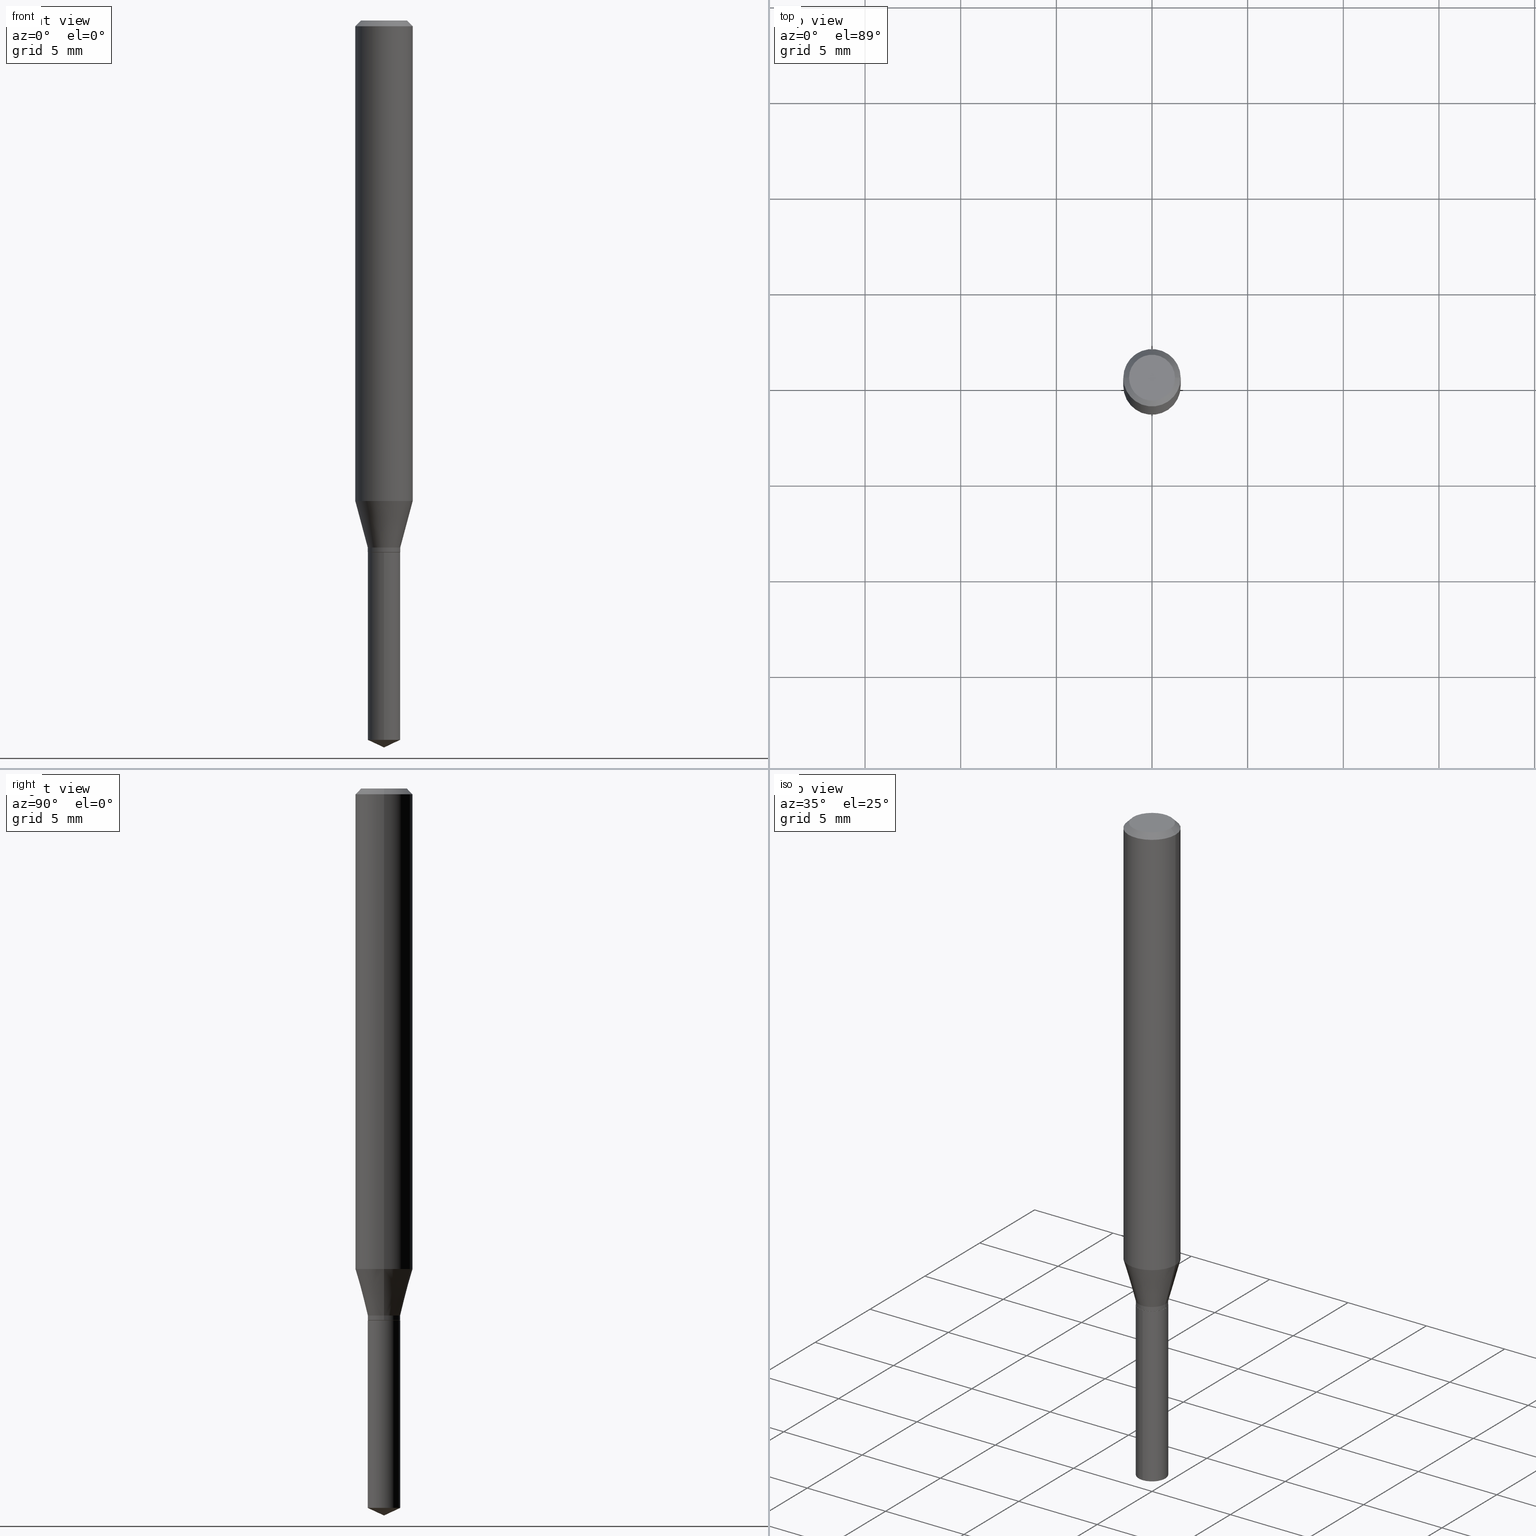
[diagram: canonical four-view strip — front | top / right | iso, engineering-drawing reading convention]
A machine part, canonical four-view strip (front | top / right | iso — engineering-drawing reading convention). The complete STEP part file that produces these views, byte-faithful:
ISO-10303-21;
HEADER;
FILE_DESCRIPTION (( 'STEP AP203' ),
    '1' );
FILE_NAME ('08174.STEP',
    '2024-04-24T13:42:59',
    ( '' ),
    ( '' ),
    'SwSTEP 2.0',
    'SolidWorks 2023',
    '' );
FILE_SCHEMA (( 'CONFIG_CONTROL_DESIGN' ));
ENDSEC;

DATA;
#1 = EDGE_LOOP ( 'NONE', ( #410, #329, #4, #339 ) ) ;
#2 = EDGE_CURVE ( 'NONE', #147, #327, #171, .T. ) ;
#3 = LENGTH_MEASURE_WITH_UNIT ( LENGTH_MEASURE( 0.02539999999999999897 ), #464 );
#4 = ORIENTED_EDGE ( 'NONE', *, *, #167, .F. ) ;
#5 = CIRCLE ( 'NONE', #199, 0.03344999999999999363 ) ;
#6 = APPLICATION_PROTOCOL_DEFINITION ( 'international standard', 'config_control_design', 1994, #235 ) ;
#7 = DIRECTION ( 'NONE',  ( 0.7071067811864205632, -2.468850131080928224E-15, 0.7071067811866742492 ) ) ;
#8 = COORDINATED_UNIVERSAL_TIME_OFFSET ( 5, 0, .BEHIND. ) ;
#9 = CARTESIAN_POINT ( 'NONE',  ( 0.05904999999999999832, -4.535783407291118600E-16, -0.01181000000000007218 ) ) ;
#10 = ADVANCED_FACE ( 'NONE', ( #85 ), #237, .F. ) ;
#11 = PERSON_AND_ORGANIZATION ( #28, #125 ) ;
#12 = DIRECTION ( 'NONE',  ( -2.445468806185136877E-29, 3.491481338843145188E-15, 1.000000000000000000 ) ) ;
#13 = AXIS2_PLACEMENT_3D ( 'NONE', #478, #104, #296 ) ;
#14 = APPROVAL_PERSON_ORGANIZATION ( #380, #318, #353 ) ;
#15 = COORDINATED_UNIVERSAL_TIME_OFFSET ( 5, 0, .BEHIND. ) ;
#16 = DIRECTION ( 'NONE',  ( -0.2588190451025213501, 5.211531920934551042E-15, 0.9659258262890682012 ) ) ;
#17 = APPROVAL_DATE_TIME ( #470, #318 ) ;
#18 = CARTESIAN_POINT ( 'NONE',  ( 2.652110920307780249E-29, -3.786511511975391124E-15, -1.084499999999999797 ) ) ;
#19 = ADVANCED_FACE ( 'NONE', ( #247 ), #487, .T. ) ;
#20 = AXIS2_PLACEMENT_3D ( 'NONE', #396, #177, #133 ) ;
#21 = CARTESIAN_POINT ( 'NONE',  ( 0.000000000000000000, 0.000000000000000000, 0.000000000000000000 ) ) ;
#22 = AXIS2_PLACEMENT_3D ( 'NONE', #374, #413, #404 ) ;
#23 = CONICAL_SURFACE ( 'NONE', #13, 0.03344999999999998669, 0.2617993877991500740 ) ;
#24 = DIRECTION ( 'NONE',  ( -2.445468806185136597E-29, 3.491481338843145583E-15, 1.000000000000000000 ) ) ;
#25 = CONICAL_SURFACE ( 'NONE', #442, 84.42940631927660888, 1.134464013796326221 ) ;
#26 = DIRECTION ( 'NONE',  ( -2.445402730703145379E-29, 3.491575962694140016E-15, 1.000000000000000000 ) ) ;
#27 = VERTEX_POINT ( 'NONE', #50 ) ;
#28 = PERSON ( 'UNSPECIFIED', 'UNSPECIFIED', 'UNSPECIFIED', ('UNSPECIFIED'), ('UNSPECIFIED'), ('UNSPECIFIED') ) ;
#29 = DIRECTION ( 'NONE',  ( -2.445402730703145379E-29, 3.491575962694140016E-15, 1.000000000000000000 ) ) ;
#30 = ORIENTED_EDGE ( 'NONE', *, *, #2, .T. ) ;
#31 = EDGE_CURVE ( 'NONE', #294, #27, #210, .T. ) ;
#32 = DIRECTION ( 'NONE',  ( -2.445468806185136597E-29, 3.491481338843145583E-15, 1.000000000000000000 ) ) ;
#33 = CARTESIAN_POINT ( 'NONE',  ( 3.658567025404975087E-29, -5.223746797786701947E-15, -1.496099999999999985 ) ) ;
#34 = ORIENTED_EDGE ( 'NONE', *, *, #381, .T. ) ;
#35 = CARTESIAN_POINT ( 'NONE',  ( 0.03344999999999998669, -4.020091613543996190E-15, -1.084499999999999797 ) ) ;
#36 = VERTEX_POINT ( 'NONE', #246 ) ;
#37 = LINE ( 'NONE', #301, #209 ) ;
#38 = APPROVAL_PERSON_ORGANIZATION ( #127, #238, #387 ) ;
#39 = ORIENTED_EDGE ( 'NONE', *, *, #452, .T. ) ;
#40 = CC_DESIGN_APPROVAL ( #318, ( #102 ) ) ;
#41 = CARTESIAN_POINT ( 'NONE',  ( 0.03344999999999998669, -2.335801015686055098E-16, 1.631081131503739828E-30 ) ) ;
#42 = VERTEX_POINT ( 'NONE', #202 ) ;
#43 = DATE_AND_TIME ( #377, #230 ) ;
#44 = ORIENTED_EDGE ( 'NONE', *, *, #117, .T. ) ;
#45 = EDGE_CURVE ( 'NONE', #266, #27, #351, .T. ) ;
#46 = DATE_AND_TIME ( #345, #240 ) ;
#47 = DIRECTION ( 'NONE',  ( -1.000000000000000000, 6.982962677686266711E-15, 0.000000000000000000 ) ) ;
#48 =( GEOMETRIC_REPRESENTATION_CONTEXT ( 3 ) GLOBAL_UNCERTAINTY_ASSIGNED_CONTEXT ( ( #323 ) ) GLOBAL_UNIT_ASSIGNED_CONTEXT ( ( #163, #168, #319 ) ) REPRESENTATION_CONTEXT ( 'NONE', 'WORKASPACE' ) );
#49 = CALENDAR_DATE ( 2024, 24, 4 ) ;
#50 = CARTESIAN_POINT ( 'NONE',  ( 0.03344999999999999363, -4.053260686263006336E-15, -1.093999999999999861 ) ) ;
#51 = SECURITY_CLASSIFICATION_LEVEL ( 'unclassified' ) ;
#52 = LINE ( 'NONE', #465, #241 ) ;
#53 = EDGE_CURVE ( 'NONE', #341, #36, #468, .T. ) ;
#54 = DATE_AND_TIME ( #49, #300 ) ;
#55 = DIRECTION ( 'NONE',  ( 2.445468806185136597E-29, -3.491481338843145583E-15, -1.000000000000000000 ) ) ;
#56 = AXIS2_PLACEMENT_3D ( 'NONE', #292, #469, #207 ) ;
#57 = DIRECTION ( 'NONE',  ( 2.445402730703145099E-29, -3.491575962694140016E-15, -1.000000000000000000 ) ) ;
#58 = DIRECTION ( 'NONE',  ( -6.982962677686264344E-15, -1.000000000000000000, 4.083479811157344024E-15 ) ) ;
#59 = CC_DESIGN_PERSON_AND_ORGANIZATION_ASSIGNMENT ( #201, #129, ( #102 ) ) ;
#60 = CARTESIAN_POINT ( 'NONE',  ( 2.676565608369632355E-29, -3.821426325363822773E-15, -1.094500000000000028 ) ) ;
#61 = ORIENTED_EDGE ( 'NONE', *, *, #390, .F. ) ;
#62 = AXIS2_PLACEMENT_3D ( 'NONE', #372, #191, #152 ) ;
#63 = FACE_OUTER_BOUND ( 'NONE', #373, .T. ) ;
#64 = SHAPE_DEFINITION_REPRESENTATION ( #242, #139 ) ;
#65 = CARTESIAN_POINT ( 'NONE',  ( 2.676565608369632355E-29, -3.821426325363822773E-15, -1.094500000000000028 ) ) ;
#66 = ORIENTED_EDGE ( 'NONE', *, *, #452, .F. ) ;
#67 = FACE_OUTER_BOUND ( 'NONE', #1, .T. ) ;
#68 = PRODUCT_DEFINITION ( 'UNKNOWN', '', #256, #278 ) ;
#69 = ORIENTED_EDGE ( 'NONE', *, *, #363, .F. ) ;
#70 = LINE ( 'NONE', #33, #95 ) ;
#71 = VECTOR ( 'NONE', #273, 39.37007874015748143 ) ;
#72 = ADVANCED_FACE ( 'NONE', ( #200 ), #392, .F. ) ;
#73 = AXIS2_PLACEMENT_3D ( 'NONE', #424, #162, #429 ) ;
#74 = ORIENTED_EDGE ( 'NONE', *, *, #431, .T. ) ;
#75 = CYLINDRICAL_SURFACE ( 'NONE', #156, 0.03345000000000000057 ) ;
#76 = ORIENTED_EDGE ( 'NONE', *, *, #167, .T. ) ;
#77 = DIRECTION ( 'NONE',  ( 6.439704144417061119E-15, 0.9063077870366564870, 0.4226182617406853970 ) ) ;
#78 = EDGE_CURVE ( 'NONE', #271, #341, #357, .T. ) ;
#79 = EDGE_LOOP ( 'NONE', ( #223, #39, #302 ) ) ;
#80 = DIRECTION ( 'NONE',  ( -2.445468806185136597E-29, 3.491481338843145583E-15, 1.000000000000000000 ) ) ;
#81 = ORIENTED_EDGE ( 'NONE', *, *, #325, .T. ) ;
#82 = CARTESIAN_POINT ( 'NONE',  ( 2.676565608369631794E-29, -3.821426325363822773E-15, -1.094499999999999806 ) ) ;
#83 = VERTEX_POINT ( 'NONE', #9 ) ;
#84 = APPROVAL_STATUS ( 'not_yet_approved' ) ;
#85 = FACE_OUTER_BOUND ( 'NONE', #474, .T. ) ;
#86 = APPROVAL_ROLE ( '' ) ;
#87 = CARTESIAN_POINT ( 'NONE',  ( 2.888098660104664204E-31, -4.123439461173780263E-17, -0.01181000000000007218 ) ) ;
#88 = CIRCLE ( 'NONE', #62, 0.03345000000000000057 ) ;
#89 = AXIS2_PLACEMENT_3D ( 'NONE', #420, #94, #204 ) ;
#90 = CARTESIAN_POINT ( 'NONE',  ( 0.04724000000000000421, -3.852183633974369345E-16, -3.380025165621689721E-19 ) ) ;
#91 = DIRECTION ( 'NONE',  ( 0.000000000000000000, 0.000000000000000000, 1.000000000000000000 ) ) ;
#92 = CARTESIAN_POINT ( 'NONE',  ( 2.888098660104664204E-31, -4.123439461173780263E-17, -0.01181000000000007218 ) ) ;
#93 = COORDINATED_UNIVERSAL_TIME_OFFSET ( 5, 0, .BEHIND. ) ;
#94 = DIRECTION ( 'NONE',  ( -2.445468806185136597E-29, 3.491481338843145583E-15, 1.000000000000000000 ) ) ;
#95 = VECTOR ( 'NONE', #484, 39.37007874015748143 ) ;
#96 = CARTESIAN_POINT ( 'NONE',  ( 2.418469606182781541E-29, -3.452933636769214658E-15, -0.9889594993262362799 ) ) ;
#97 = LINE ( 'NONE', #433, #264 ) ;
#98 = ORIENTED_EDGE ( 'NONE', *, *, #414, .T. ) ;
#99 = EDGE_CURVE ( 'NONE', #271, #438, #126, .T. ) ;
#100 = CARTESIAN_POINT ( 'NONE',  ( -9.261705871415894043E-28, 1.322399773465276608E-13, 37.87397874015748300 ) ) ;
#101 = CONICAL_SURFACE ( 'NONE', #263, 0.03344999999999998669, 0.2617993877991500740 ) ;
#102 = SECURITY_CLASSIFICATION ( '', '', #51 ) ;
#103 = FACE_OUTER_BOUND ( 'NONE', #449, .T. ) ;
#104 = DIRECTION ( 'NONE',  ( -2.445468806185136597E-29, 3.491481338843145583E-15, 1.000000000000000000 ) ) ;
#105 = DIRECTION ( 'NONE',  ( 1.000000000000000000, -6.982962677686267499E-15, 0.000000000000000000 ) ) ;
#106 = ORIENTED_EDGE ( 'NONE', *, *, #134, .F. ) ;
#107 = EDGE_CURVE ( 'NONE', #483, #268, #231, .T. ) ;
#108 = CARTESIAN_POINT ( 'NONE',  ( 2.676565608369632355E-29, -3.821426325363822773E-15, -1.094500000000000028 ) ) ;
#109 = APPROVAL_PERSON_ORGANIZATION ( #277, #141, #86 ) ;
#110 = ORIENTED_EDGE ( 'NONE', *, *, #447, .T. ) ;
#111 = LINE ( 'NONE', #225, #142 ) ;
#112 = ORIENTED_EDGE ( 'NONE', *, *, #31, .F. ) ;
#113 = APPLICATION_CONTEXT ( 'configuration controlled 3d designs of mechanical parts and assemblies' ) ;
#114 = ADVANCED_FACE ( 'NONE', ( #458 ), #308, .T. ) ;
#115 = CARTESIAN_POINT ( 'NONE',  ( -0.03344999999999998669, 2.376765451117534176E-16, -1.645383787690265228E-30 ) ) ;
#116 = ORIENTED_EDGE ( 'NONE', *, *, #176, .T. ) ;
#117 = EDGE_CURVE ( 'NONE', #268, #483, #289, .T. ) ;
#118 = CARTESIAN_POINT ( 'NONE',  ( 2.676565608369632355E-29, -3.821426325363822773E-15, -1.094500000000000028 ) ) ;
#119 = CIRCLE ( 'NONE', #181, 0.03345000000000000057 ) ;
#120 = ORIENTED_EDGE ( 'NONE', *, *, #78, .F. ) ;
#121 = LINE ( 'NONE', #122, #174 ) ;
#122 = CARTESIAN_POINT ( 'NONE',  ( 0.03344999999999998669, -4.020091613543996190E-15, -1.084499999999999797 ) ) ;
#123 = PERSON_AND_ORGANIZATION_ROLE ( 'design_owner' ) ;
#124 = CARTESIAN_POINT ( 'NONE',  ( 2.676565608369631794E-29, -3.821426325363822773E-15, -1.094499999999999806 ) ) ;
#125 = ORGANIZATION ( 'UNSPECIFIED', 'UNSPECIFIED', '' ) ;
#126 = CIRCLE ( 'NONE', #249, 0.03344999999999998669 ) ;
#127 = PERSON_AND_ORGANIZATION ( #28, #125 ) ;
#128 = DIRECTION ( 'NONE',  ( -2.445468806185136877E-29, 3.491481338843145188E-15, 1.000000000000000000 ) ) ;
#129 = PERSON_AND_ORGANIZATION_ROLE ( 'classification_officer' ) ;
#130 = MANIFOLD_SOLID_BREP ( 'Body-Move/Copy2[1]', #436 ) ;
#131 = DIRECTION ( 'NONE',  ( 6.982962677686265922E-15, 1.000000000000000000, -3.491575962694140016E-15 ) ) ;
#132 = AXIS2_PLACEMENT_3D ( 'NONE', #386, #169, #275 ) ;
#133 = DIRECTION ( 'NONE',  ( -6.982962677686266711E-15, -1.000000000000000000, 3.520397390770359207E-15 ) ) ;
#134 = EDGE_CURVE ( 'NONE', #438, #42, #121, .T. ) ;
#135 = AXIS2_PLACEMENT_3D ( 'NONE', #481, #338, #105 ) ;
#136 = VECTOR ( 'NONE', #12, 39.37007874015748143 ) ;
#137 = FACE_OUTER_BOUND ( 'NONE', #398, .T. ) ;
#138 = CYLINDRICAL_SURFACE ( 'NONE', #56, 0.03344999999999998669 ) ;
#139 = ADVANCED_BREP_SHAPE_REPRESENTATION ( '08174', ( #130, #144, #190 ), #48 ) ;
#140 = CARTESIAN_POINT ( 'NONE',  ( 2.652110920307780249E-29, -3.786511511975391124E-15, -1.084499999999999797 ) ) ;
#141 = APPROVAL ( #84, 'UNSPECIFIED' ) ;
#142 = VECTOR ( 'NONE', #335, 39.37007874015748143 ) ;
#143 = DIRECTION ( 'NONE',  ( -6.982962677686266711E-15, -1.000000000000000000, 3.520397390770359207E-15 ) ) ;
#144 = MANIFOLD_SOLID_BREP ( 'Body-Move/Copy2[2]', #224 ) ;
#145 = CARTESIAN_POINT ( 'NONE',  ( 0.000000000000000000, 0.000000000000000000, 0.000000000000000000 ) ) ;
#146 = CARTESIAN_POINT ( 'NONE',  ( -0.03295000000000000012, -3.584653266756758314E-15, -1.094500000000000028 ) ) ;
#147 = VERTEX_POINT ( 'NONE', #90 ) ;
#148 = AXIS2_PLACEMENT_3D ( 'NONE', #96, #293, #170 ) ;
#149 = CARTESIAN_POINT ( 'NONE',  ( 3.658567025404975087E-29, -5.223746797786701947E-15, -1.496099999999999985 ) ) ;
#150 = CC_DESIGN_SECURITY_CLASSIFICATION ( #102, ( #256 ) ) ;
#151 = ORIENTED_EDGE ( 'NONE', *, *, #78, .T. ) ;
#152 = DIRECTION ( 'NONE',  ( -6.982962677686264344E-15, -1.000000000000000000, 0.000000000000000000 ) ) ;
#153 = EDGE_LOOP ( 'NONE', ( #334, #192, #405, #378 ) ) ;
#154 = FACE_OUTER_BOUND ( 'NONE', #486, .T. ) ;
#155 = EDGE_LOOP ( 'NONE', ( #76, #34, #349, #253 ) ) ;
#156 = AXIS2_PLACEMENT_3D ( 'NONE', #82, #222, #298 ) ;
#157 = ORIENTED_EDGE ( 'NONE', *, *, #381, .F. ) ;
#158 = EDGE_CURVE ( 'NONE', #42, #341, #166, .T. ) ;
#159 = VECTOR ( 'NONE', #7, 39.37007874015748854 ) ;
#160 = ORIENTED_EDGE ( 'NONE', *, *, #31, .T. ) ;
#161 = EDGE_CURVE ( 'NONE', #42, #83, #52, .T. ) ;
#162 = DIRECTION ( 'NONE',  ( -2.445402730703145379E-29, 3.491575962694140016E-15, 1.000000000000000000 ) ) ;
#163 =( CONVERSION_BASED_UNIT ( 'INCH', #3 ) LENGTH_UNIT ( ) NAMED_UNIT ( #244 ) );
#164 = DIRECTION ( 'NONE',  ( -1.000000000000000000, 6.982962677686266711E-15, 0.000000000000000000 ) ) ;
#165 = CC_DESIGN_APPROVAL ( #238, ( #256 ) ) ;
#166 = CIRCLE ( 'NONE', #407, 0.05905000000000011628 ) ;
#167 = EDGE_CURVE ( 'NONE', #27, #294, #5, .T. ) ;
#168 =( NAMED_UNIT ( * ) PLANE_ANGLE_UNIT ( ) SI_UNIT ( $, .RADIAN. ) );
#169 = DIRECTION ( 'NONE',  ( -2.445468806185136597E-29, 3.491481338843145583E-15, 1.000000000000000000 ) ) ;
#170 = DIRECTION ( 'NONE',  ( 1.000000000000000000, -6.982962677686266711E-15, 0.000000000000000000 ) ) ;
#171 = CIRCLE ( 'NONE', #132, 0.04724000000000000421 ) ;
#172 = DIRECTION ( 'NONE',  ( 1.000000000000000000, -6.982962677686266711E-15, 4.876176775795935793E-29 ) ) ;
#173 = AXIS2_PLACEMENT_3D ( 'NONE', #108, #229, #305 ) ;
#174 = VECTOR ( 'NONE', #462, 39.37007874015747433 ) ;
#175 = DIRECTION ( 'NONE',  ( -2.445402730703145379E-29, 3.491575962694140016E-15, 1.000000000000000000 ) ) ;
#176 = EDGE_CURVE ( 'NONE', #234, #483, #97, .T. ) ;
#177 = DIRECTION ( 'NONE',  ( -2.445402730703145379E-29, 3.491575962694140016E-15, 1.000000000000000000 ) ) ;
#178 = CC_DESIGN_DATE_AND_TIME_ASSIGNMENT ( #43, #196, ( #102 ) ) ;
#179 = ORIENTED_EDGE ( 'NONE', *, *, #480, .T. ) ;
#180 = CARTESIAN_POINT ( 'NONE',  ( 0.000000000000000000, 0.000000000000000000, 0.000000000000000000 ) ) ;
#181 = AXIS2_PLACEMENT_3D ( 'NONE', #333, #340, #187 ) ;
#182 = ADVANCED_FACE ( 'NONE', ( #364 ), #25, .T. ) ;
#183 = FACE_OUTER_BOUND ( 'NONE', #155, .T. ) ;
#184 = ORIENTED_EDGE ( 'NONE', *, *, #161, .T. ) ;
#185 = DIRECTION ( 'NONE',  ( -2.445468806185136877E-29, 3.491481338843145188E-15, 1.000000000000000000 ) ) ;
#186 = ORIENTED_EDGE ( 'NONE', *, *, #107, .T. ) ;
#187 = DIRECTION ( 'NONE',  ( -6.982962677686264344E-15, -1.000000000000000000, 0.000000000000000000 ) ) ;
#188 = ORIENTED_EDGE ( 'NONE', *, *, #134, .T. ) ;
#189 = ADVANCED_FACE ( 'NONE', ( #252 ), #328, .T. ) ;
#190 = AXIS2_PLACEMENT_3D ( 'NONE', #307, #91, #316 ) ;
#191 = DIRECTION ( 'NONE',  ( -2.445402730703145379E-29, 3.491575962694140016E-15, 1.000000000000000000 ) ) ;
#192 = ORIENTED_EDGE ( 'NONE', *, *, #423, .F. ) ;
#193 = ADVANCED_FACE ( 'NONE', ( #359 ), #422, .T. ) ;
#194 = DIRECTION ( 'NONE',  ( -2.445468806185136877E-29, 3.491481338843145188E-15, 1.000000000000000000 ) ) ;
#195 = EDGE_LOOP ( 'NONE', ( #299, #197, #445, #112 ) ) ;
#196 = DATE_TIME_ROLE ( 'classification_date' ) ;
#197 = ORIENTED_EDGE ( 'NONE', *, *, #397, .T. ) ;
#198 = APPROVAL_STATUS ( 'not_yet_approved' ) ;
#199 = AXIS2_PLACEMENT_3D ( 'NONE', #214, #24, #254 ) ;
#200 = FACE_OUTER_BOUND ( 'NONE', #412, .T. ) ;
#201 = PERSON_AND_ORGANIZATION ( #28, #125 ) ;
#202 = CARTESIAN_POINT ( 'NONE',  ( 0.05905000000000011628, -3.865277582886589578E-15, -0.9889594993262362799 ) ) ;
#203 = CIRCLE ( 'NONE', #391, 0.05904999999999999832 ) ;
#204 = DIRECTION ( 'NONE',  ( 1.000000000000000000, -6.982962677686265922E-15, 0.000000000000000000 ) ) ;
#205 = CALENDAR_DATE ( 2024, 24, 4 ) ;
#206 = CARTESIAN_POINT ( 'NONE',  ( 0.03295000000000000012, -4.051514945593585621E-15, -1.094500000000000028 ) ) ;
#207 = DIRECTION ( 'NONE',  ( 1.000000000000000000, -6.982962677686265922E-15, 4.876176775795935793E-29 ) ) ;
#208 = ORIENTED_EDGE ( 'NONE', *, *, #397, .F. ) ;
#209 = VECTOR ( 'NONE', #488, 39.37007874015748854 ) ;
#210 = CIRCLE ( 'NONE', #89, 0.03344999999999999363 ) ;
#211 = DIRECTION ( 'NONE',  ( 1.000000000000000000, -6.982962677686267499E-15, 0.000000000000000000 ) ) ;
#212 = EDGE_LOOP ( 'NONE', ( #215, #74, #489, #251 ) ) ;
#213 = ADVANCED_FACE ( 'NONE', ( #471 ), #440, .T. ) ;
#214 = CARTESIAN_POINT ( 'NONE',  ( 2.675342873966538993E-29, -3.819680584694400481E-15, -1.093999999999999861 ) ) ;
#215 = ORIENTED_EDGE ( 'NONE', *, *, #2, .F. ) ;
#216 = DIRECTION ( 'NONE',  ( 1.000000000000000000, -6.982962677686264344E-15, 0.000000000000000000 ) ) ;
#217 = ORIENTED_EDGE ( 'NONE', *, *, #117, .F. ) ;
#218 = CONICAL_SURFACE ( 'NONE', #432, 0.03295000000000000012, 0.7853981633972689780 ) ;
#219 = AXIS2_PLACEMENT_3D ( 'NONE', #92, #428, #164 ) ;
#220 = CARTESIAN_POINT ( 'NONE',  ( 2.888098660104664204E-31, -4.123439461173780263E-17, -0.01181000000000007218 ) ) ;
#221 = ORIENTED_EDGE ( 'NONE', *, *, #53, .T. ) ;
#222 = DIRECTION ( 'NONE',  ( -2.445402730703145379E-29, 3.491575962694140016E-15, 1.000000000000000000 ) ) ;
#223 = ORIENTED_EDGE ( 'NONE', *, *, #477, .F. ) ;
#224 = CLOSED_SHELL ( 'NONE', ( #309, #19, #226, #315, #352, #290, #276, #189, #114, #342, #10, #213 ) ) ;
#225 = CARTESIAN_POINT ( 'NONE',  ( 0.05904999999999999832, -4.463468013801466955E-16, -0.01181000000000007218 ) ) ;
#226 = ADVANCED_FACE ( 'NONE', ( #137 ), #291, .T. ) ;
#227 = EDGE_LOOP ( 'NONE', ( #419, #179, #98, #304 ) ) ;
#228 = CIRCLE ( 'NONE', #173, 0.03295000000000000012 ) ;
#229 = DIRECTION ( 'NONE',  ( -2.445468806185136597E-29, 3.491481338843145583E-15, 1.000000000000000000 ) ) ;
#230 = LOCAL_TIME ( 9, 42, 59.00000000000000000, #93 ) ;
#231 = CIRCLE ( 'NONE', #73, 0.03345000000000000057 ) ;
#232 = ORIENTED_EDGE ( 'NONE', *, *, #325, .F. ) ;
#233 = CARTESIAN_POINT ( 'NONE',  ( 8.265746106709734507E-48, -1.180129479067563789E-33, -3.380025165646692144E-19 ) ) ;
#234 = VERTEX_POINT ( 'NONE', #331 ) ;
#235 = APPLICATION_CONTEXT ( 'configuration controlled 3d designs of mechanical parts and assemblies' ) ;
#236 = PERSON_AND_ORGANIZATION ( #28, #125 ) ;
#237 = PLANE ( 'NONE',  #321 ) ;
#238 = APPROVAL ( #280, 'UNSPECIFIED' ) ;
#239 = PERSON_AND_ORGANIZATION_ROLE ( 'creator' ) ;
#240 = LOCAL_TIME ( 9, 42, 59.00000000000000000, #245 ) ;
#241 = VECTOR ( 'NONE', #128, 39.37007874015748143 ) ;
#242 = PRODUCT_DEFINITION_SHAPE ( 'NONE', 'NONE',  #68 ) ;
#243 = CARTESIAN_POINT ( 'NONE',  ( 2.418469606182781541E-29, -3.452933636769214658E-15, -0.9889594993262362799 ) ) ;
#244 = DIMENSIONAL_EXPONENTS ( 1.000000000000000000, 0.000000000000000000, 0.000000000000000000, 0.000000000000000000, 0.000000000000000000, 0.000000000000000000, 0.000000000000000000 ) ;
#245 = COORDINATED_UNIVERSAL_TIME_OFFSET ( 5, 0, .BEHIND. ) ;
#246 = CARTESIAN_POINT ( 'NONE',  ( -0.05904999999999999832, -1.327508530224135714E-15, -0.01181000000000007218 ) ) ;
#247 = FACE_OUTER_BOUND ( 'NONE', #212, .T. ) ;
#248 = AXIS2_PLACEMENT_3D ( 'NONE', #180, #361, #172 ) ;
#249 = AXIS2_PLACEMENT_3D ( 'NONE', #18, #310, #282 ) ;
#250 = FACE_OUTER_BOUND ( 'NONE', #227, .T. ) ;
#251 = ORIENTED_EDGE ( 'NONE', *, *, #421, .F. ) ;
#252 = FACE_OUTER_BOUND ( 'NONE', #274, .T. ) ;
#253 = ORIENTED_EDGE ( 'NONE', *, *, #376, .F. ) ;
#254 = DIRECTION ( 'NONE',  ( 1.000000000000000000, -6.982962677686265922E-15, 0.000000000000000000 ) ) ;
#255 = ORIENTED_EDGE ( 'NONE', *, *, #53, .F. ) ;
#256 = PRODUCT_DEFINITION_FORMATION_WITH_SPECIFIED_SOURCE ( 'ANY', '', #466, .NOT_KNOWN. ) ;
#257 = LOCAL_TIME ( 9, 42, 59.00000000000000000, #475 ) ;
#258 = AXIS2_PLACEMENT_3D ( 'NONE', #124, #57, #131 ) ;
#259 = DIRECTION ( 'NONE',  ( -2.445468806185136597E-29, 3.491481338843145583E-15, 1.000000000000000000 ) ) ;
#260 = DIRECTION ( 'NONE',  ( 1.000000000000000000, -6.982962677686266711E-15, 0.000000000000000000 ) ) ;
#261 = LINE ( 'NONE', #450, #356 ) ;
#262 = ORIENTED_EDGE ( 'NONE', *, *, #376, .T. ) ;
#263 = AXIS2_PLACEMENT_3D ( 'NONE', #140, #399, #211 ) ;
#264 = VECTOR ( 'NONE', #29, 39.37007874015748143 ) ;
#265 = CYLINDRICAL_SURFACE ( 'NONE', #400, 0.03344999999999998669 ) ;
#266 = VERTEX_POINT ( 'NONE', #206 ) ;
#267 = LINE ( 'NONE', #411, #367 ) ;
#268 = VERTEX_POINT ( 'NONE', #403 ) ;
#269 = CC_DESIGN_PERSON_AND_ORGANIZATION_ASSIGNMENT ( #457, #426, ( #256 ) ) ;
#270 = PLANE ( 'NONE',  #22 ) ;
#271 = VERTEX_POINT ( 'NONE', #326 ) ;
#272 = AXIS2_PLACEMENT_3D ( 'NONE', #233, #32, #297 ) ;
#273 = DIRECTION ( 'NONE',  ( -2.445402730703145379E-29, 3.491575962694140016E-15, 1.000000000000000000 ) ) ;
#274 = EDGE_LOOP ( 'NONE', ( #255, #81, #184, #61 ) ) ;
#275 = DIRECTION ( 'NONE',  ( 1.000000000000000000, -6.982962677686266711E-15, 4.876185090822587894E-29 ) ) ;
#276 = ADVANCED_FACE ( 'NONE', ( #435 ), #23, .T. ) ;
#277 = PERSON_AND_ORGANIZATION ( #28, #125 ) ;
#278 = DESIGN_CONTEXT ( 'detailed design', #113, 'design' ) ;
#279 = DIRECTION ( 'NONE',  ( 1.000000000000000000, -6.982962677686265922E-15, 4.876176775795935793E-29 ) ) ;
#280 = APPROVAL_STATUS ( 'not_yet_approved' ) ;
#281 = AXIS2_PLACEMENT_3D ( 'NONE', #118, #343, #490 ) ;
#282 = DIRECTION ( 'NONE',  ( 1.000000000000000000, -6.982962677686267499E-15, 0.000000000000000000 ) ) ;
#283 = EDGE_CURVE ( 'NONE', #83, #36, #203, .T. ) ;
#284 = APPLICATION_PROTOCOL_DEFINITION ( 'international standard', 'config_control_design', 1994, #113 ) ;
#285 = CARTESIAN_POINT ( 'NONE',  ( -0.03344999999999998669, -3.548834966863637756E-15, -1.084499999999999797 ) ) ;
#286 = APPROVAL_DATE_TIME ( #46, #141 ) ;
#287 = FACE_OUTER_BOUND ( 'NONE', #369, .T. ) ;
#288 = VECTOR ( 'NONE', #194, 39.37007874015748143 ) ;
#289 = CIRCLE ( 'NONE', #385, 0.03345000000000000057 ) ;
#290 = ADVANCED_FACE ( 'NONE', ( #287 ), #138, .T. ) ;
#291 = CYLINDRICAL_SURFACE ( 'NONE', #248, 0.05905000000000006077 ) ;
#292 = CARTESIAN_POINT ( 'NONE',  ( 0.000000000000000000, 0.000000000000000000, 0.000000000000000000 ) ) ;
#293 = DIRECTION ( 'NONE',  ( -2.445468806185136597E-29, 3.491481338843145583E-15, 1.000000000000000000 ) ) ;
#294 = VERTEX_POINT ( 'NONE', #324 ) ;
#295 = CIRCLE ( 'NONE', #479, 0.05904999999999999832 ) ;
#296 = DIRECTION ( 'NONE',  ( 1.000000000000000000, -6.982962677686267499E-15, 0.000000000000000000 ) ) ;
#297 = DIRECTION ( 'NONE',  ( 1.000000000000000000, -6.982962677686266711E-15, 4.876185090822587894E-29 ) ) ;
#298 = DIRECTION ( 'NONE',  ( -6.982962677686264344E-15, -1.000000000000000000, 4.083479811157344024E-15 ) ) ;
#299 = ORIENTED_EDGE ( 'NONE', *, *, #393, .F. ) ;
#300 = LOCAL_TIME ( 9, 42, 59.00000000000000000, #8 ) ;
#301 = CARTESIAN_POINT ( 'NONE',  ( -0.03295000000000000012, -3.587302493930870304E-15, -1.094500000000000028 ) ) ;
#302 = ORIENTED_EDGE ( 'NONE', *, *, #480, .F. ) ;
#303 = CARTESIAN_POINT ( 'NONE',  ( 2.376765451117897545E-16, 0.03344999999999617724, -1.094500000000000028 ) ) ;
#304 = ORIENTED_EDGE ( 'NONE', *, *, #107, .F. ) ;
#305 = DIRECTION ( 'NONE',  ( 1.000000000000000000, -6.982962677686264344E-15, 0.000000000000000000 ) ) ;
#306 = ORIENTED_EDGE ( 'NONE', *, *, #158, .T. ) ;
#307 = CARTESIAN_POINT ( 'NONE',  ( 0.000000000000000000, 0.000000000000000000, 0.000000000000000000 ) ) ;
#308 = CONICAL_SURFACE ( 'NONE', #219, 0.05904999999999999832, 0.7853981633974452814 ) ;
#309 = ADVANCED_FACE ( 'NONE', ( #67 ), #218, .T. ) ;
#310 = DIRECTION ( 'NONE',  ( -2.445468806185136597E-29, 3.491481338843145583E-15, 1.000000000000000000 ) ) ;
#311 = MECHANICAL_CONTEXT ( 'NONE', #235, 'mechanical' ) ;
#312 = CARTESIAN_POINT ( 'NONE',  ( 2.676565608369631794E-29, -3.821426325363822773E-15, -1.094499999999999806 ) ) ;
#313 = APPROVAL_DATE_TIME ( #350, #238 ) ;
#314 = DIRECTION ( 'NONE',  ( -6.982962677686264344E-15, -1.000000000000000000, 4.083479811157344024E-15 ) ) ;
#315 = ADVANCED_FACE ( 'NONE', ( #63 ), #101, .T. ) ;
#316 = DIRECTION ( 'NONE',  ( 1.000000000000000000, 0.000000000000000000, 0.000000000000000000 ) ) ;
#317 = LOCAL_TIME ( 9, 42, 59.00000000000000000, #15 ) ;
#318 = APPROVAL ( #198, 'UNSPECIFIED' ) ;
#319 =( NAMED_UNIT ( * ) SI_UNIT ( $, .STERADIAN. ) SOLID_ANGLE_UNIT ( ) );
#320 = ORIENTED_EDGE ( 'NONE', *, *, #99, .T. ) ;
#321 = AXIS2_PLACEMENT_3D ( 'NONE', #358, #430, #279 ) ;
#322 = CARTESIAN_POINT ( 'NONE',  ( -0.04724000000000000421, 3.504923541997677355E-16, -3.380025165670481712E-19 ) ) ;
#323 = UNCERTAINTY_MEASURE_WITH_UNIT (LENGTH_MEASURE( 1.000000000000000082E-05 ), #163, 'distance_accuracy_value', 'NONE');
#324 = CARTESIAN_POINT ( 'NONE',  ( -0.03344999999999999363, -3.565419503223142434E-15, -1.093999999999999861 ) ) ;
#325 = EDGE_CURVE ( 'NONE', #341, #42, #332, .T. ) ;
#326 = CARTESIAN_POINT ( 'NONE',  ( -0.03344999999999998669, -3.565419503223142434E-15, -1.084499999999999797 ) ) ;
#327 = VERTEX_POINT ( 'NONE', #322 ) ;
#328 = CYLINDRICAL_SURFACE ( 'NONE', #330, 0.05905000000000006077 ) ;
#329 = ORIENTED_EDGE ( 'NONE', *, *, #393, .T. ) ;
#330 = AXIS2_PLACEMENT_3D ( 'NONE', #21, #259, #365 ) ;
#331 = CARTESIAN_POINT ( 'NONE',  ( 2.376765451117897052E-16, 0.03344999999999482415, -1.480502008834715610 ) ) ;
#332 = CIRCLE ( 'NONE', #148, 0.05905000000000011628 ) ;
#333 = CARTESIAN_POINT ( 'NONE',  ( 3.620495974830945806E-29, -5.169181660962767472E-15, -1.480502008834715610 ) ) ;
#334 = ORIENTED_EDGE ( 'NONE', *, *, #431, .F. ) ;
#335 = DIRECTION ( 'NONE',  ( 0.7071067811865453523, -7.319954787623248157E-15, -0.7071067811865496822 ) ) ;
#336 = ADVANCED_FACE ( 'NONE', ( #250 ), #394, .T. ) ;
#337 = ORIENTED_EDGE ( 'NONE', *, *, #283, .F. ) ;
#338 = DIRECTION ( 'NONE',  ( -2.445468806185136597E-29, 3.491481338843145583E-15, 1.000000000000000000 ) ) ;
#339 = ORIENTED_EDGE ( 'NONE', *, *, #45, .F. ) ;
#340 = DIRECTION ( 'NONE',  ( -2.445402730703145379E-29, 3.491575962694140016E-15, 1.000000000000000000 ) ) ;
#341 = VERTEX_POINT ( 'NONE', #439 ) ;
#342 = ADVANCED_FACE ( 'NONE', ( #103 ), #270, .F. ) ;
#343 = DIRECTION ( 'NONE',  ( -2.445468806185136597E-29, 3.491481338843145583E-15, 1.000000000000000000 ) ) ;
#344 = ORIENTED_EDGE ( 'NONE', *, *, #477, .T. ) ;
#345 = CALENDAR_DATE ( 2024, 24, 4 ) ;
#346 = ORIENTED_EDGE ( 'NONE', *, *, #414, .F. ) ;
#347 = CC_DESIGN_PERSON_AND_ORGANIZATION_ASSIGNMENT ( #11, #461, ( #256 ) ) ;
#348 = CIRCLE ( 'NONE', #135, 0.03344999999999998669 ) ;
#349 = ORIENTED_EDGE ( 'NONE', *, *, #447, .F. ) ;
#350 = DATE_AND_TIME ( #467, #317 ) ;
#351 = LINE ( 'NONE', #382, #159 ) ;
#352 = ADVANCED_FACE ( 'NONE', ( #183 ), #265, .T. ) ;
#353 = APPROVAL_ROLE ( '' ) ;
#354 = DIRECTION ( 'NONE',  ( -2.445468806185136597E-29, 3.491481338843145583E-15, 1.000000000000000000 ) ) ;
#355 = DATE_TIME_ROLE ( 'creation_date' ) ;
#356 = VECTOR ( 'NONE', #417, 39.37007874015748143 ) ;
#357 = LINE ( 'NONE', #285, #434 ) ;
#358 = CARTESIAN_POINT ( 'NONE',  ( -4.917366192118304542E-30, -8.358615443824423070E-15, -1.094500000000000028 ) ) ;
#359 = FACE_OUTER_BOUND ( 'NONE', #79, .T. ) ;
#360 = ORIENTED_EDGE ( 'NONE', *, *, #161, .F. ) ;
#361 = DIRECTION ( 'NONE',  ( -2.445468806185136597E-29, 3.491481338843145583E-15, 1.000000000000000000 ) ) ;
#362 = CARTESIAN_POINT ( 'NONE',  ( 2.676565608369631794E-29, -3.821426325363822773E-15, -1.094499999999999806 ) ) ;
#363 = EDGE_CURVE ( 'NONE', #266, #402, #228, .T. ) ;
#364 = FACE_OUTER_BOUND ( 'NONE', #371, .T. ) ;
#365 = DIRECTION ( 'NONE',  ( 1.000000000000000000, -6.982962677686266711E-15, 4.876176775795935793E-29 ) ) ;
#366 = ORIENTED_EDGE ( 'NONE', *, *, #423, .T. ) ;
#367 = VECTOR ( 'NONE', #77, 39.37007874015748143 ) ;
#368 = CARTESIAN_POINT ( 'NONE',  ( -2.335801015685693209E-16, -0.03345000000000517004, -1.480502008834715610 ) ) ;
#369 = EDGE_LOOP ( 'NONE', ( #157, #160, #262, #395 ) ) ;
#370 = CARTESIAN_POINT ( 'NONE',  ( -2.335801015685788365E-16, -0.03345000000000382390, -1.094499999999999806 ) ) ;
#371 = EDGE_LOOP ( 'NONE', ( #66, #344, #441 ) ) ;
#372 = CARTESIAN_POINT ( 'NONE',  ( 3.620495974830945806E-29, -5.169181660962767472E-15, -1.480502008834715610 ) ) ;
#373 = EDGE_LOOP ( 'NONE', ( #110, #151, #415, #106 ) ) ;
#374 = CARTESIAN_POINT ( 'NONE',  ( 4.132873053354867254E-48, -5.900647395337818946E-34, -1.690012582823346072E-19 ) ) ;
#375 = EDGE_LOOP ( 'NONE', ( #120, #320, #188, #232 ) ) ;
#376 = EDGE_CURVE ( 'NONE', #27, #438, #409, .T. ) ;
#377 = CALENDAR_DATE ( 2024, 24, 4 ) ;
#378 = ORIENTED_EDGE ( 'NONE', *, *, #390, .T. ) ;
#379 = PRODUCT_RELATED_PRODUCT_CATEGORY ( 'detail', '', ( #466 ) ) ;
#380 = PERSON_AND_ORGANIZATION ( #28, #125 ) ;
#381 = EDGE_CURVE ( 'NONE', #294, #271, #455, .T. ) ;
#382 = CARTESIAN_POINT ( 'NONE',  ( 0.03295000000000000012, -4.051514945593585621E-15, -1.094500000000000028 ) ) ;
#383 = AXIS2_PLACEMENT_3D ( 'NONE', #60, #401, #443 ) ;
#384 = PERSON_AND_ORGANIZATION ( #28, #125 ) ;
#385 = AXIS2_PLACEMENT_3D ( 'NONE', #312, #460, #314 ) ;
#386 = CARTESIAN_POINT ( 'NONE',  ( 8.265746106709734507E-48, -1.180129479067563789E-33, -3.380025165646692144E-19 ) ) ;
#387 = APPROVAL_ROLE ( '' ) ;
#388 = DIRECTION ( 'NONE',  ( 1.000000000000000000, -6.982962677686266711E-15, 0.000000000000000000 ) ) ;
#389 = CARTESIAN_POINT ( 'NONE',  ( -0.05905000000000006077, 4.195754854663395916E-16, -2.904631170795524694E-30 ) ) ;
#390 = EDGE_CURVE ( 'NONE', #36, #83, #295, .T. ) ;
#391 = AXIS2_PLACEMENT_3D ( 'NONE', #476, #473, #260 ) ;
#392 = PLANE ( 'NONE',  #258 ) ;
#393 = EDGE_CURVE ( 'NONE', #402, #294, #37, .T. ) ;
#394 = CYLINDRICAL_SURFACE ( 'NONE', #416, 0.03345000000000000057 ) ;
#395 = ORIENTED_EDGE ( 'NONE', *, *, #99, .F. ) ;
#396 = CARTESIAN_POINT ( 'NONE',  ( -9.261705871415894043E-28, 1.322399773465276608E-13, 37.87397874015748300 ) ) ;
#397 = EDGE_CURVE ( 'NONE', #402, #266, #485, .T. ) ;
#398 = EDGE_LOOP ( 'NONE', ( #306, #221, #337, #360 ) ) ;
#399 = DIRECTION ( 'NONE',  ( -2.445468806185136597E-29, 3.491481338843145583E-15, 1.000000000000000000 ) ) ;
#400 = AXIS2_PLACEMENT_3D ( 'NONE', #145, #80, #453 ) ;
#401 = DIRECTION ( 'NONE',  ( -2.445468806185136597E-29, 3.491481338843145583E-15, 1.000000000000000000 ) ) ;
#402 = VERTEX_POINT ( 'NONE', #146 ) ;
#403 = CARTESIAN_POINT ( 'NONE',  ( -2.335801015685788365E-16, -0.03345000000000382390, -1.094499999999999806 ) ) ;
#404 = DIRECTION ( 'NONE',  ( -1.000000000000000000, 6.982962677686265922E-15, -4.876176775795935793E-29 ) ) ;
#405 = ORIENTED_EDGE ( 'NONE', *, *, #421, .T. ) ;
#406 = CIRCLE ( 'NONE', #272, 0.04724000000000000421 ) ;
#407 = AXIS2_PLACEMENT_3D ( 'NONE', #243, #354, #388 ) ;
#408 = ADVANCED_FACE ( 'NONE', ( #154 ), #75, .T. ) ;
#409 = LINE ( 'NONE', #41, #425 ) ;
#410 = ORIENTED_EDGE ( 'NONE', *, *, #363, .T. ) ;
#411 = CARTESIAN_POINT ( 'NONE',  ( 3.658712932950369103E-29, -5.223539666176875291E-15, -1.496099999999999985 ) ) ;
#412 = EDGE_LOOP ( 'NONE', ( #44, #186 ) ) ;
#413 = DIRECTION ( 'NONE',  ( 2.438088387897960049E-29, -3.491481338843145188E-15, -1.000000000000000000 ) ) ;
#414 = EDGE_CURVE ( 'NONE', #451, #268, #448, .T. ) ;
#415 = ORIENTED_EDGE ( 'NONE', *, *, #158, .F. ) ;
#416 = AXIS2_PLACEMENT_3D ( 'NONE', #362, #26, #58 ) ;
#417 = DIRECTION ( 'NONE',  ( -0.7071067811865453523, 2.468850131082234184E-15, -0.7071067811865496822 ) ) ;
#418 = CC_DESIGN_PERSON_AND_ORGANIZATION_ASSIGNMENT ( #236, #239, ( #68 ) ) ;
#419 = ORIENTED_EDGE ( 'NONE', *, *, #176, .F. ) ;
#420 = CARTESIAN_POINT ( 'NONE',  ( 2.675342873966538993E-29, -3.819680584694400481E-15, -1.093999999999999861 ) ) ;
#421 = EDGE_CURVE ( 'NONE', #327, #36, #261, .T. ) ;
#422 = CONICAL_SURFACE ( 'NONE', #20, 84.42940631927660888, 1.134464013796326221 ) ;
#423 = EDGE_CURVE ( 'NONE', #327, #147, #406, .T. ) ;
#424 = CARTESIAN_POINT ( 'NONE',  ( 2.676565608369631794E-29, -3.821426325363822773E-15, -1.094499999999999806 ) ) ;
#425 = VECTOR ( 'NONE', #185, 39.37007874015748143 ) ;
#426 = PERSON_AND_ORGANIZATION_ROLE ( 'creator' ) ;
#427 = CC_DESIGN_PERSON_AND_ORGANIZATION_ASSIGNMENT ( #384, #123, ( #466 ) ) ;
#428 = DIRECTION ( 'NONE',  ( 2.445468806185136597E-29, -3.491481338843145583E-15, -1.000000000000000000 ) ) ;
#429 = DIRECTION ( 'NONE',  ( -6.982962677686264344E-15, -1.000000000000000000, 4.083479811157344024E-15 ) ) ;
#430 = DIRECTION ( 'NONE',  ( -2.438088387897960049E-29, 3.491481338843145188E-15, 1.000000000000000000 ) ) ;
#431 = EDGE_CURVE ( 'NONE', #147, #83, #111, .T. ) ;
#432 = AXIS2_PLACEMENT_3D ( 'NONE', #65, #437, #216 ) ;
#433 = CARTESIAN_POINT ( 'NONE',  ( 2.376765451117802389E-16, 0.03344999999999617724, -1.094500000000000028 ) ) ;
#434 = VECTOR ( 'NONE', #16, 39.37007874015747433 ) ;
#435 = FACE_OUTER_BOUND ( 'NONE', #375, .T. ) ;
#436 = CLOSED_SHELL ( 'NONE', ( #408, #182, #193, #336, #72 ) ) ;
#437 = DIRECTION ( 'NONE',  ( -2.445468806185136597E-29, 3.491481338843145583E-15, 1.000000000000000000 ) ) ;
#438 = VERTEX_POINT ( 'NONE', #35 ) ;
#439 = CARTESIAN_POINT ( 'NONE',  ( -0.05905000000000011628, -3.033358151302874771E-15, -0.9889594993262362799 ) ) ;
#440 = CONICAL_SURFACE ( 'NONE', #383, 0.03295000000000000012, 0.7853981633972689780 ) ;
#441 = ORIENTED_EDGE ( 'NONE', *, *, #446, .F. ) ;
#442 = AXIS2_PLACEMENT_3D ( 'NONE', #100, #175, #143 ) ;
#443 = DIRECTION ( 'NONE',  ( 1.000000000000000000, -6.982962677686264344E-15, 0.000000000000000000 ) ) ;
#444 = DIRECTION ( 'NONE',  ( 1.000000000000000000, -6.982962677686266711E-15, 0.000000000000000000 ) ) ;
#445 = ORIENTED_EDGE ( 'NONE', *, *, #45, .T. ) ;
#446 = EDGE_CURVE ( 'NONE', #451, #234, #119, .T. ) ;
#447 = EDGE_CURVE ( 'NONE', #438, #271, #348, .T. ) ;
#448 = LINE ( 'NONE', #370, #71 ) ;
#449 = EDGE_LOOP ( 'NONE', ( #366, #30 ) ) ;
#450 = CARTESIAN_POINT ( 'NONE',  ( -0.05904999999999999832, 3.711095515056362547E-16, -0.01181000000000007218 ) ) ;
#451 = VERTEX_POINT ( 'NONE', #368 ) ;
#452 = EDGE_CURVE ( 'NONE', #456, #451, #70, .T. ) ;
#453 = DIRECTION ( 'NONE',  ( 1.000000000000000000, -6.982962677686265922E-15, 4.876176775795935793E-29 ) ) ;
#454 = ORIENTED_EDGE ( 'NONE', *, *, #446, .T. ) ;
#455 = LINE ( 'NONE', #115, #288 ) ;
#456 = VERTEX_POINT ( 'NONE', #149 ) ;
#457 = PERSON_AND_ORGANIZATION ( #28, #125 ) ;
#458 = FACE_OUTER_BOUND ( 'NONE', #153, .T. ) ;
#459 = CC_DESIGN_DATE_AND_TIME_ASSIGNMENT ( #54, #355, ( #68 ) ) ;
#460 = DIRECTION ( 'NONE',  ( -2.445402730703145379E-29, 3.491575962694140016E-15, 1.000000000000000000 ) ) ;
#461 = PERSON_AND_ORGANIZATION_ROLE ( 'design_supplier' ) ;
#462 = DIRECTION ( 'NONE',  ( 0.2588190451025213501, 1.565188264969621968E-15, 0.9659258262890682012 ) ) ;
#463 = CC_DESIGN_APPROVAL ( #141, ( #68 ) ) ;
#464 =( LENGTH_UNIT ( ) NAMED_UNIT ( * ) SI_UNIT ( $, .METRE. ) );
#465 = CARTESIAN_POINT ( 'NONE',  ( 0.05905000000000006077, -4.123439461173744764E-16, 2.879382386107503023E-30 ) ) ;
#466 = PRODUCT ( '08174', '08174', '', ( #311 ) ) ;
#467 = CALENDAR_DATE ( 2024, 24, 4 ) ;
#468 = LINE ( 'NONE', #389, #136 ) ;
#469 = DIRECTION ( 'NONE',  ( -2.445468806185136597E-29, 3.491481338843145583E-15, 1.000000000000000000 ) ) ;
#470 = DATE_AND_TIME ( #205, #257 ) ;
#471 = FACE_OUTER_BOUND ( 'NONE', #195, .T. ) ;
#472 = AXIS2_PLACEMENT_3D ( 'NONE', #87, #55, #47 ) ;
#473 = DIRECTION ( 'NONE',  ( -2.445468806185136597E-29, 3.491481338843145583E-15, 1.000000000000000000 ) ) ;
#474 = EDGE_LOOP ( 'NONE', ( #69, #208 ) ) ;
#475 = COORDINATED_UNIVERSAL_TIME_OFFSET ( 5, 0, .BEHIND. ) ;
#476 = CARTESIAN_POINT ( 'NONE',  ( 2.888098660104664204E-31, -4.123439461173780263E-17, -0.01181000000000007218 ) ) ;
#477 = EDGE_CURVE ( 'NONE', #456, #234, #267, .T. ) ;
#478 = CARTESIAN_POINT ( 'NONE',  ( 2.652110920307780249E-29, -3.786511511975391124E-15, -1.084499999999999797 ) ) ;
#479 = AXIS2_PLACEMENT_3D ( 'NONE', #220, #482, #444 ) ;
#480 = EDGE_CURVE ( 'NONE', #234, #451, #88, .T. ) ;
#481 = CARTESIAN_POINT ( 'NONE',  ( 2.652110920307780249E-29, -3.786511511975391124E-15, -1.084499999999999797 ) ) ;
#482 = DIRECTION ( 'NONE',  ( -2.445468806185136597E-29, 3.491481338843145583E-15, 1.000000000000000000 ) ) ;
#483 = VERTEX_POINT ( 'NONE', #303 ) ;
#484 = DIRECTION ( 'NONE',  ( -6.328713451373404877E-15, -0.9063077870366536004, 0.4226182617406917252 ) ) ;
#485 = CIRCLE ( 'NONE', #281, 0.03295000000000000012 ) ;
#486 = EDGE_LOOP ( 'NONE', ( #454, #116, #217, #346 ) ) ;
#487 = CONICAL_SURFACE ( 'NONE', #472, 0.05904999999999999832, 0.7853981633974452814 ) ;
#488 = DIRECTION ( 'NONE',  ( -0.7071067811864205632, 7.493145998869895043E-15, 0.7071067811866742492 ) ) ;
#489 = ORIENTED_EDGE ( 'NONE', *, *, #283, .T. ) ;
#490 = DIRECTION ( 'NONE',  ( 1.000000000000000000, -6.982962677686264344E-15, 0.000000000000000000 ) ) ;
ENDSEC;
END-ISO-10303-21;
